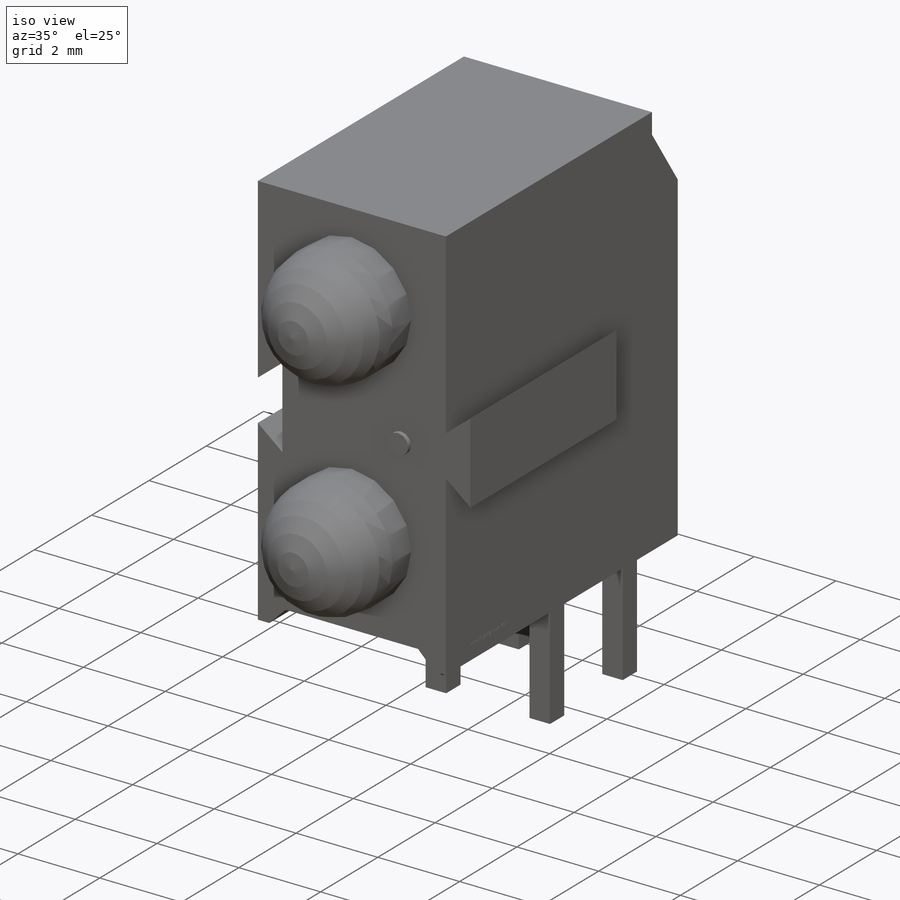
[diagram: iso view]
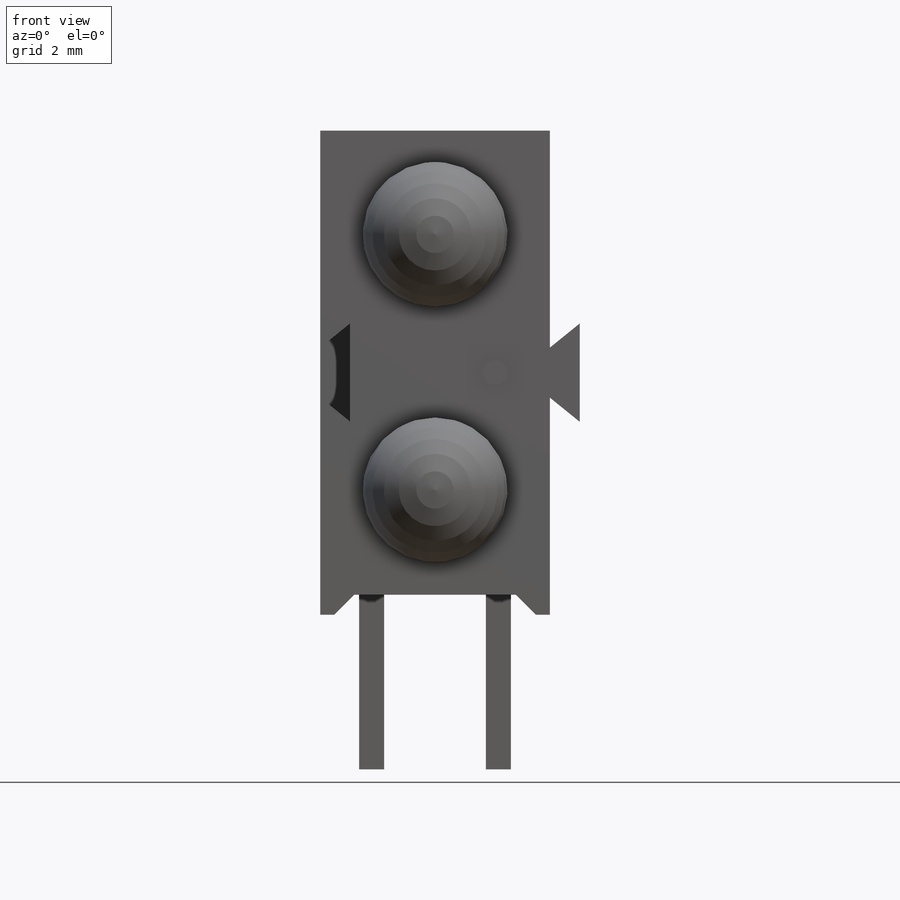
[diagram: front view]
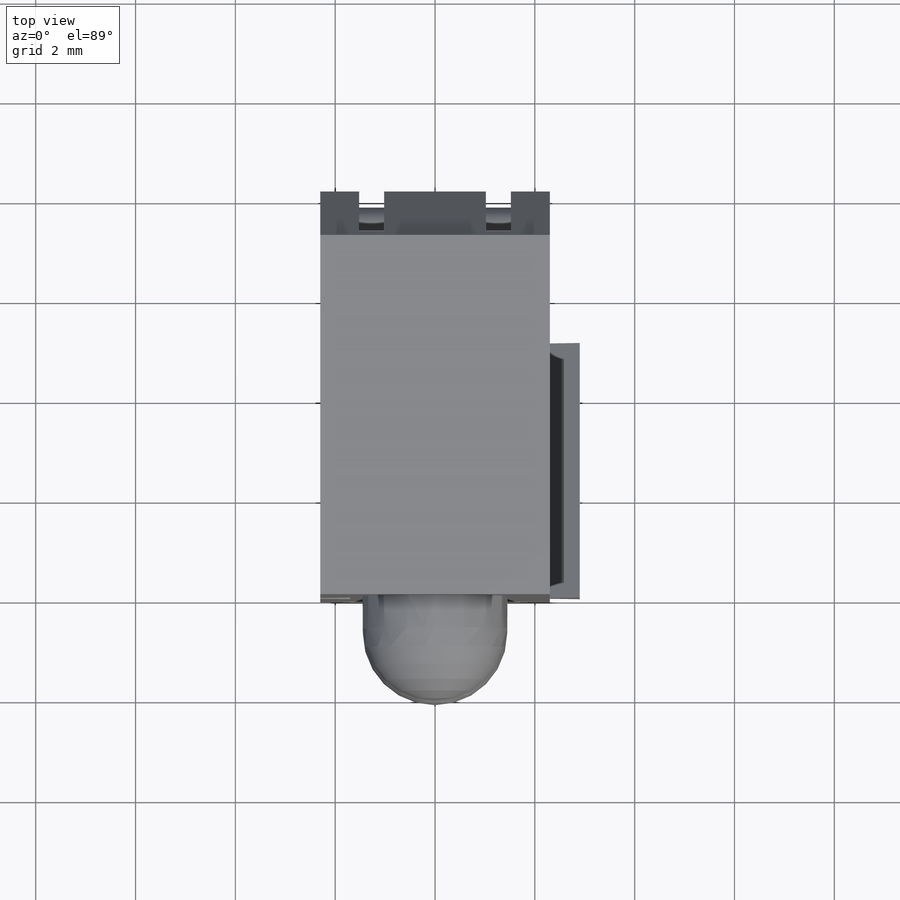
[diagram: top view]
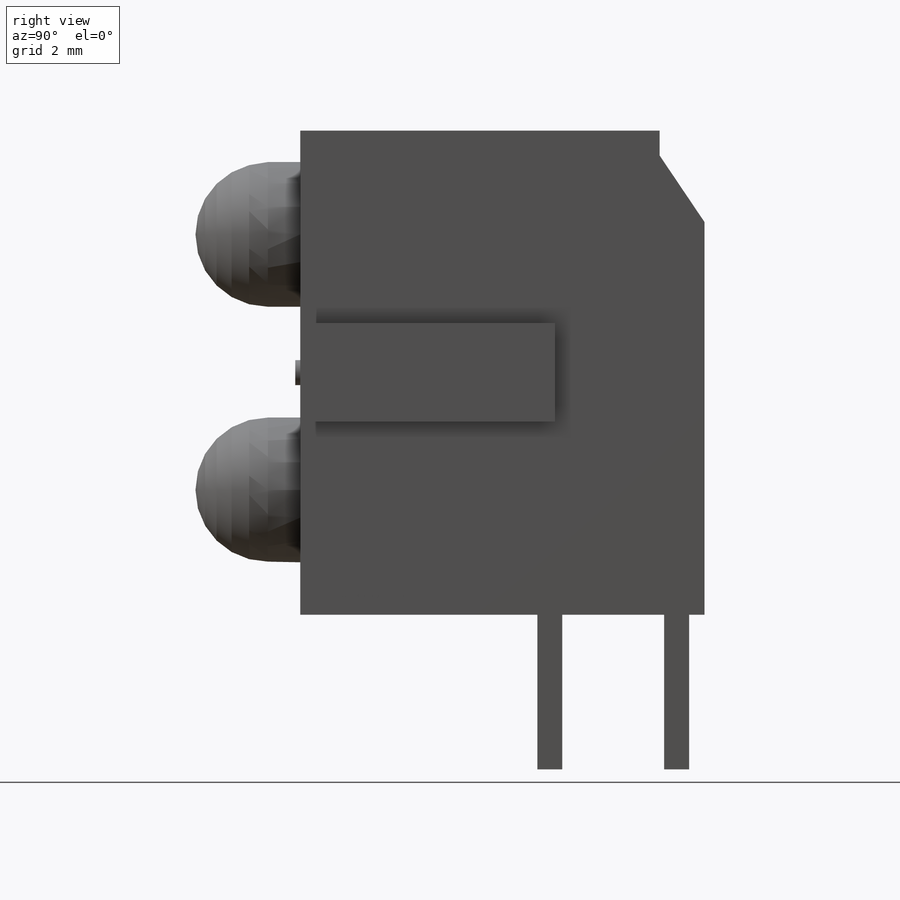
[diagram: right view]
SOLIDWORKS PART (.sldprt)
format: sldprt  version: not decoded by parser v0  size: 808,448 bytes
history: native  units: mm
features: sketch x12, extrude x5, cut_extrude x5, revolve x2, material x1, fillet x1 (+11 scaffold rows collapsed)
feature tree (37):
  scaffold x11  (default folders/planes/origin — collapsed)
  material  "Material <not specified>"
  sketch  "Sketch1"  dims[c1.D6=2.9mm c1.D8=2.9mm c1.D1=9.7mm c1.D2=8.1mm c1.D3=7.2mm c1.D4=0.5mm c1.D5=~1.909573mm c2.D5=~151.880658deg c3.D5=~1.909573mm c4.D5=34.0deg c4.D7=2.1mm c4.D9=2.54mm c4.D10=2.5mm c5.D9=7.62mm]
  extrude  "Extrude1"  Depth=4.6mm
  sketch  "Sketch2"  dims[c1.D5=0.5mm c1.D1=0.4mm c1.D2=0.7mm c1.D3=0.7mm c1.D4=~0.831589mm c2.D4=135.0deg c2.D5=~0.565685mm c2.D6=~1.234976mm c3.D6=51.0deg c3.D7=1.2mm c3.D8=~1.335973mm c3.D9=1.1mm c4.D8=0.77mm c4.D9=~2.713482mm c4.D7=0.6mm c5.D8=1.0mm c5.D9=9.7mm c6.D9=51.0deg c6.D10=0.6mm c6.D11=0.77mm c6.D12=~1.544111mm c6.D2=3.2mm c6.D3=2.8mm c7.D2=2.8mm c8.D2=90.0deg c9.D2=3.24mm c9.D3=0.4mm]
  cut_extrude  "Cut-Extrude1"  [1 undecoded]
  cut_extrude  "Cut-Extrude2"  [1 undecoded]
  sketch  "Sketch2<3>"  dims[D1=5.1mm]
  extrude  "Extrude2"  [1 undecoded]
  sketch  "Sketch2<4>"  dims[D1=5.1mm]
  extrude  "Extrude3"  [1 undecoded]
  sketch  "Sketch2<5>"  dims[D1=0.1mm]
  revolve  "Revolve1"  [1 undecoded]
  sketch  "Sketch1<3>"  dims[D1=360.0deg]
  revolve  "Revolve2"  [1 undecoded]
  sketch  "Sketch1<4>"  dims[D1=360.0deg]
  sketch  "Sketch3"  dims[D1=0.5mm D2=0.5mm D3=0.5mm D4=2.54mm D5=5.0mm D6=2.54mm]
  cut_extrude  "Cut-Extrude3"  [1 undecoded]
  extrude  "Extrude4"  [1 undecoded]
  sketch  "Sketch3<3>"
  extrude  "Extrude5"  [1 undecoded]
  sketch  "Sketch3<4>"  dims[D1=3.5mm]
  cut_extrude  "Cut-Extrude4"  [1 undecoded]
  sketch  "Sketch3<5>"
  fillet  "Fillet1"  Radius=0.5mm
  sketch  "Sketch4"  dims[D1=3.0mm]
  cut_extrude  "Cut-Extrude5"  Depth=0.01mm
decode coverage: 13 of 25 modeling features carry decoded parameters
note: ~ marks probable driven/reference dimensions
note: 10 parameter values undecoded
summary: no parameter record found for 10 features
note: suppression state not decoded; provenance and decode notes live in map.json
